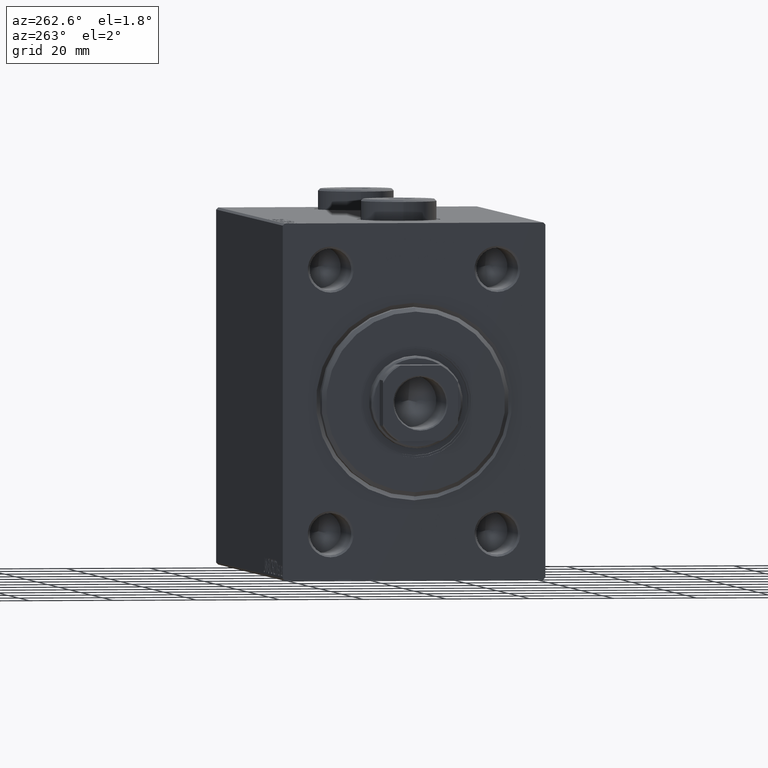
[diagram: clean part render]
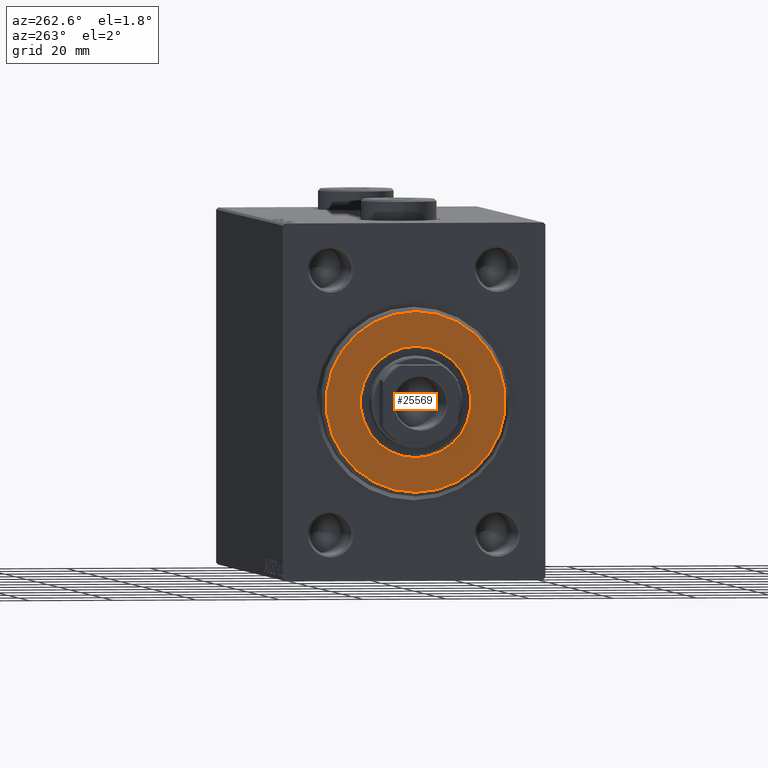
[diagram: same view with one face highlighted and labeled with its STEP entity id]
A machine part, auxiliary view. The second image highlights one B-rep face of the part: STEP entity #25569.
In plain terms, the highlighted planar face has unit normal (-1, 0, 0).
Its self-contained STEP definition (entity closure, byte-faithful):
#354 = CARTESIAN_POINT ( 'NONE',  ( 3.000000000000000000, 1.622657008870243277E-15, 13.25000000000000178 ) ) ;
#1093 = PLANE ( 'NONE',  #32712 ) ;
#1797 = CARTESIAN_POINT ( 'NONE',  ( 3.000000000000000000, 0.000000000000000000, 0.000000000000000000 ) ) ;
#2630 = CARTESIAN_POINT ( 'NONE',  ( 3.000000000000000000, 0.000000000000000000, 0.000000000000000000 ) ) ;
#4188 = AXIS2_PLACEMENT_3D ( 'NONE', #21324, #31711, #38620 ) ;
#4502 = ORIENTED_EDGE ( 'NONE', *, *, #29851, .T. ) ;
#4864 = VERTEX_POINT ( 'NONE', #25470 ) ;
#6463 = EDGE_CURVE ( 'NONE', #13397, #10049, #9299, .T. ) ;
#7814 = CARTESIAN_POINT ( 'NONE',  ( 3.000000000000000000, 0.000000000000000000, 0.000000000000000000 ) ) ;
#8026 = FACE_BOUND ( 'NONE', #9010, .T. ) ;
#8272 = DIRECTION ( 'NONE',  ( 0.000000000000000000, 0.000000000000000000, -1.000000000000000000 ) ) ;
#9010 = EDGE_LOOP ( 'NONE', ( #21693, #22882 ) ) ;
#9299 = CIRCLE ( 'NONE', #17352, 13.25000000000000178 ) ;
#10049 = VERTEX_POINT ( 'NONE', #16241 ) ;
#13397 = VERTEX_POINT ( 'NONE', #354 ) ;
#14510 = EDGE_LOOP ( 'NONE', ( #4502, #41357 ) ) ;
#16241 = CARTESIAN_POINT ( 'NONE',  ( 3.000000000000000000, 0.000000000000000000, -13.25000000000000178 ) ) ;
#16669 = DIRECTION ( 'NONE',  ( 1.000000000000000000, -0.000000000000000000, 0.000000000000000000 ) ) ;
#17114 = DIRECTION ( 'NONE',  ( 0.000000000000000000, 0.000000000000000000, -1.000000000000000000 ) ) ;
#17352 = AXIS2_PLACEMENT_3D ( 'NONE', #34123, #44958, #31577 ) ;
#18367 = DIRECTION ( 'NONE',  ( 0.000000000000000000, 0.000000000000000000, -1.000000000000000000 ) ) ;
#18633 = VERTEX_POINT ( 'NONE', #20085 ) ;
#18830 = DIRECTION ( 'NONE',  ( 1.000000000000000000, -0.000000000000000000, 0.000000000000000000 ) ) ;
#20085 = CARTESIAN_POINT ( 'NONE',  ( 3.000000000000000000, 2.694222958124177598E-15, -21.50000000000000355 ) ) ;
#21324 = CARTESIAN_POINT ( 'NONE',  ( 3.000000000000000000, 0.000000000000000000, 0.000000000000000000 ) ) ;
#21588 = CIRCLE ( 'NONE', #31180, 13.25000000000000178 ) ;
#21693 = ORIENTED_EDGE ( 'NONE', *, *, #21798, .F. ) ;
#21798 = EDGE_CURVE ( 'NONE', #10049, #13397, #21588, .T. ) ;
#22882 = ORIENTED_EDGE ( 'NONE', *, *, #6463, .F. ) ;
#23783 = EDGE_CURVE ( 'NONE', #18633, #4864, #32673, .T. ) ;
#25470 = CARTESIAN_POINT ( 'NONE',  ( 3.000000000000000000, 0.000000000000000000, 21.50000000000000355 ) ) ;
#25569 = ADVANCED_FACE ( 'NONE', ( #32879, #8026 ), #1093, .T. ) ;
#29851 = EDGE_CURVE ( 'NONE', #4864, #18633, #40235, .T. ) ;
#31180 = AXIS2_PLACEMENT_3D ( 'NONE', #7814, #43508, #8272 ) ;
#31577 = DIRECTION ( 'NONE',  ( 0.000000000000000000, 0.000000000000000000, -1.000000000000000000 ) ) ;
#31711 = DIRECTION ( 'NONE',  ( 1.000000000000000000, -0.000000000000000000, 0.000000000000000000 ) ) ;
#32673 = CIRCLE ( 'NONE', #45227, 21.50000000000000355 ) ;
#32712 = AXIS2_PLACEMENT_3D ( 'NONE', #1797, #18830, #18367 ) ;
#32879 = FACE_OUTER_BOUND ( 'NONE', #14510, .T. ) ;
#34123 = CARTESIAN_POINT ( 'NONE',  ( 3.000000000000000000, 0.000000000000000000, 0.000000000000000000 ) ) ;
#38620 = DIRECTION ( 'NONE',  ( 0.000000000000000000, 0.000000000000000000, -1.000000000000000000 ) ) ;
#40235 = CIRCLE ( 'NONE', #4188, 21.50000000000000355 ) ;
#41357 = ORIENTED_EDGE ( 'NONE', *, *, #23783, .T. ) ;
#43508 = DIRECTION ( 'NONE',  ( 1.000000000000000000, 0.000000000000000000, 0.000000000000000000 ) ) ;
#44958 = DIRECTION ( 'NONE',  ( 1.000000000000000000, 0.000000000000000000, 0.000000000000000000 ) ) ;
#45227 = AXIS2_PLACEMENT_3D ( 'NONE', #2630, #16669, #17114 ) ;